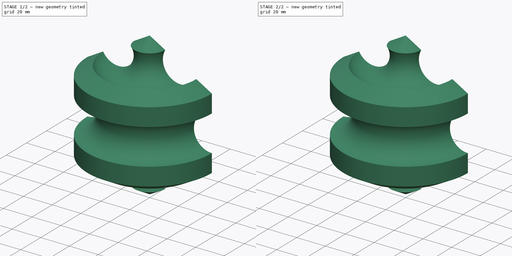
[diagram: build sequence overview — one tinted view per stage of 2, left to right]
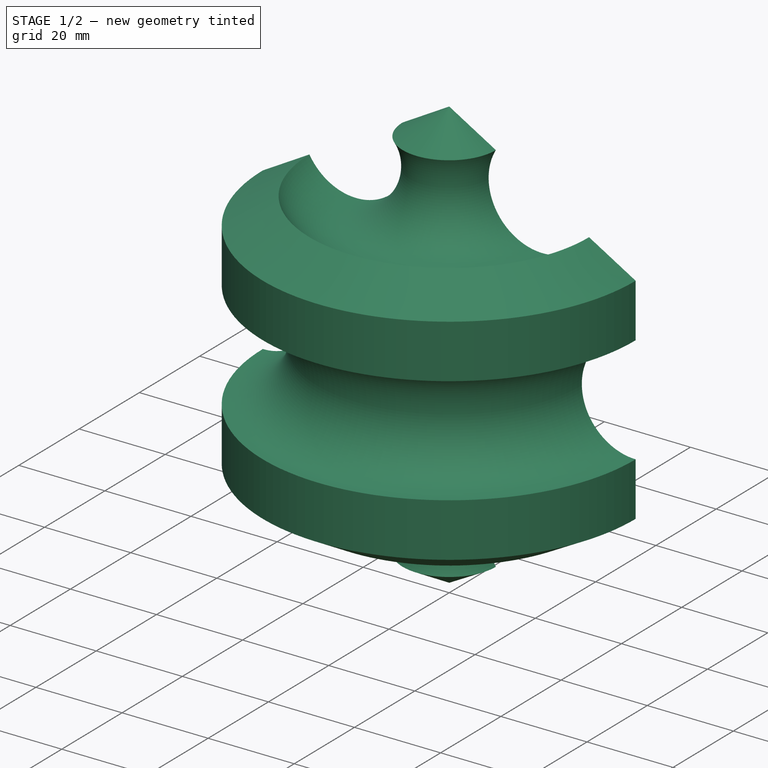
[diagram: stage 1 of 2 — iso view after this stage's code; geometry added in this stage tinted green]
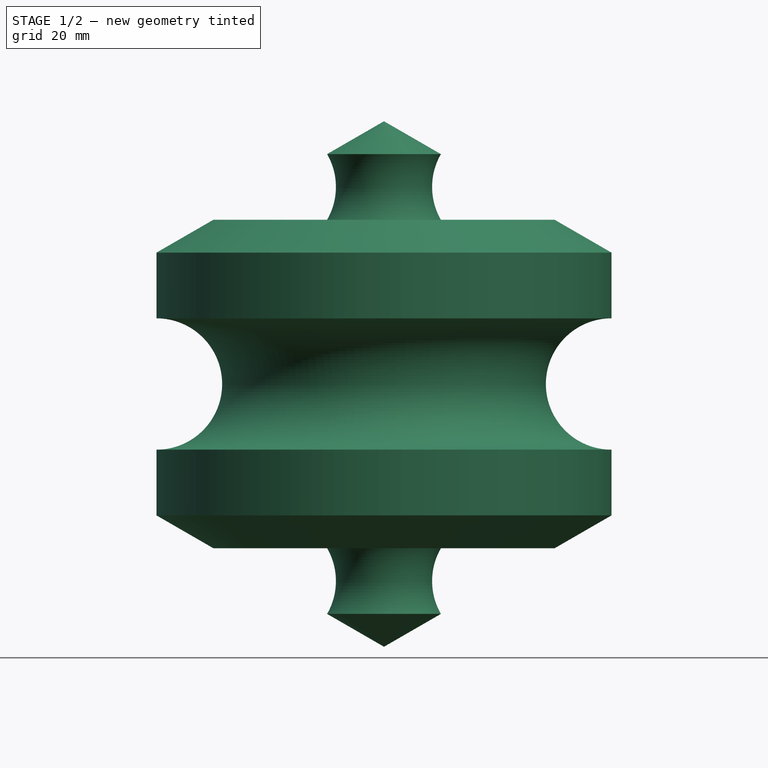
[diagram: stage 1 of 2 — front view after this stage's code; geometry added in this stage tinted green]
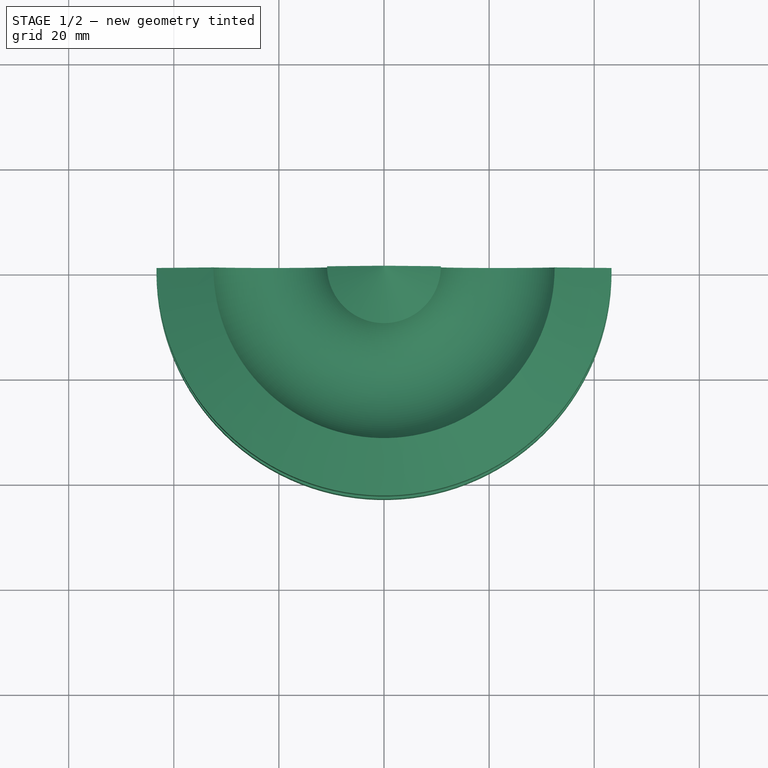
[diagram: stage 1 of 2 — top view after this stage's code; geometry added in this stage tinted green]
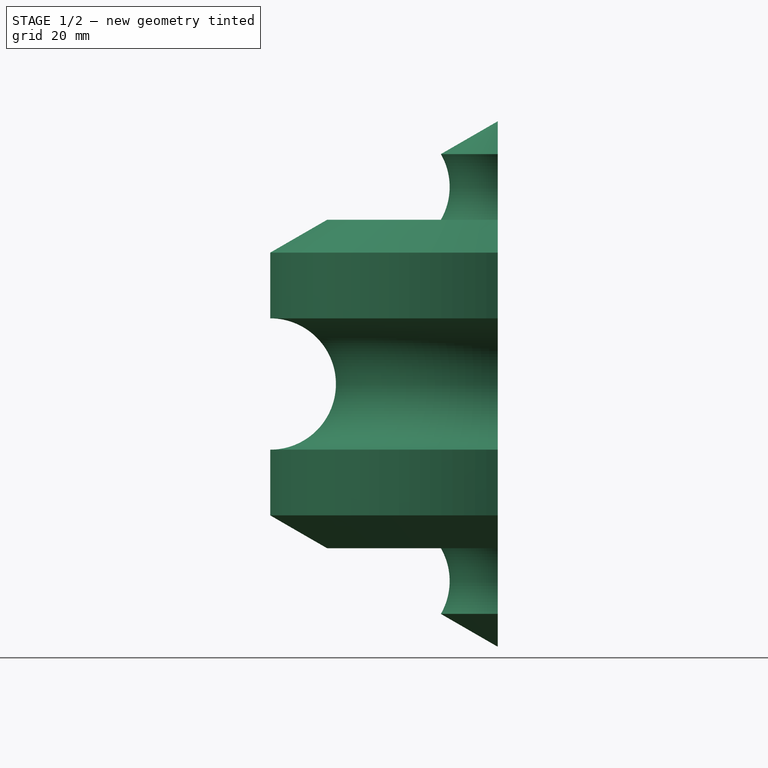
[diagram: stage 1 of 2 — right view after this stage's code; geometry added in this stage tinted green]
FCSTD DOCUMENT  (FreeCAD 0.21R33771 (Git))
Label: ex96
License: All rights reserved
LicenseURL: https://en.wikipedia.org/wiki/All_rights_reserved
objects: PartDesign::Body×2, Sketcher::SketchObject×1, PartDesign::Revolution×1, PartDesign::FeatureBase×1
note: 6 computed .brp shape members not serialized (recipe doc carries the construction recipe); baked Part::Feature solids carry a one-line shape summary decoded from their .brp

FEATURE [Sketcher::SketchObject] Sketch
  FullyConstrained = false
  MapMode = 5
  Placement = pos=(0,0,0) rot=(1,0,0;1.5708rad)
  Support = -> [XZ_Plane]
  sketch-geometry (14):
    g0: LineSegment StartX=43.3013 StartY=-25 StartZ=0 EndX=43.3013 EndY=-12.5 EndZ=0
    g1: LineSegment StartX=43.3013 StartY=25 StartZ=0 EndX=32.476 EndY=31.25 EndZ=0
    g2: LineSegment StartX=0 StartY=50 StartZ=0 EndX=-43.3014 EndY=24.9997 EndZ=0
    g3: LineSegment StartX=-43.3014 StartY=24.9997 StartZ=0 EndX=-43.3013 EndY=-24.9999 EndZ=0
    g4: LineSegment StartX=-43.3013 StartY=-24.9999 StartZ=0 EndX=1.42e-14 EndY=-50 EndZ=0
    g5: LineSegment StartX=1.42e-14 StartY=-50 StartZ=0 EndX=10.8253 EndY=-43.75 EndZ=0
    g6: Circle CenterX=0 CenterY=0 CenterZ=0 NormalX=0 NormalY=0 NormalZ=1 AngleXU=0 Radius=50
    g7: ArcOfCircle CenterX=21.6506 CenterY=37.5 CenterZ=0 NormalX=0 NormalY=0 NormalZ=1 AngleXU=0 Radius=12.5 StartAngle=2.61799 EndAngle=5.75959
    g8: ArcOfCircle CenterX=43.3013 CenterY=6e-15 CenterZ=0 NormalX=0 NormalY=0 NormalZ=1 AngleXU=0 Radius=12.5 StartAngle=1.5708 EndAngle=4.71239
    g9: ArcOfCircle CenterX=21.6506 CenterY=-37.5 CenterZ=0 NormalX=0 NormalY=0 NormalZ=1 AngleXU=0 Radius=12.5 StartAngle=0.523599 EndAngle=3.66519
    g10: LineSegment StartX=10.8253 StartY=43.75 StartZ=0 EndX=0 EndY=50 EndZ=0
    g11: LineSegment StartX=43.3013 StartY=12.5 StartZ=0 EndX=43.3013 EndY=25 EndZ=0
    g12: LineSegment StartX=32.476 StartY=-31.25 StartZ=0 EndX=43.3013 EndY=-25 EndZ=0
    g13: LineSegment StartX=0 StartY=50 StartZ=0 EndX=1.42e-14 EndY=-50 EndZ=0
  constraints (41):
    c: Coincident(g11,g1)
    c: Coincident(g10,g2)
    c: Coincident(g2,g3)
    c: Coincident(g3,g4)
    c: Coincident(g4,g5)
    c: Coincident(g12,g0)
    c: PointOnObject(g11,g6)
    c: PointOnObject(g10,g6)
    c: PointOnObject(g2,g6)
    c: PointOnObject(g3,g6)
    c: PointOnObject(g4,g6)
    c: PointOnObject(g12,g6)
    c: Coincident(g6,g-1)
    c: PointOnObject(g10,g-2)
    c: DistanceY(g4,g10) = 100
    c: PointOnObject(g7,g1)
    c: PointOnObject(g8,g0)
    c: PointOnObject(g9,g5)
    c: Equal(g7,g8)
    c: Equal(g8,g9)
    c: Coincident(g1,g7)
    c: Coincident(g10,g7)
    c: Coincident(g0,g8)
    c: Coincident(g11,g8)
    c: Coincident(g5,g9)
    c: Coincident(g12,g9)
    c: PointOnObject(g9,g5)
    c: PointOnObject(g0,g11)
    c: PointOnObject(g1,g10)
    c: Equal(g10,g1)
    c: Equal(g1,g11)
    c: Equal(g11,g0)
    c: Equal(g0,g12)
    c: Equal(g12,g5)
    c: Vertical(g11)
    c: Vertical(g0)
    c: Parallel(g5,g12)
    c: Parallel(g1,g10)
    c: Diameter(g7) = 25
    c: Coincident(g13,g10)
    c: Coincident(g13,g5)
FEATURE [PartDesign::Revolution] Revolution
  Angle = 180
  Axis = (0,2e-16,1)
  Base = (0,0,0)
  Placement = pos=(0,0,0) rot=(1,0,0;1.5708rad)
  Profile = -> Sketch
  ReferenceAxis = -> Sketch [V_Axis]
  Reversed = true
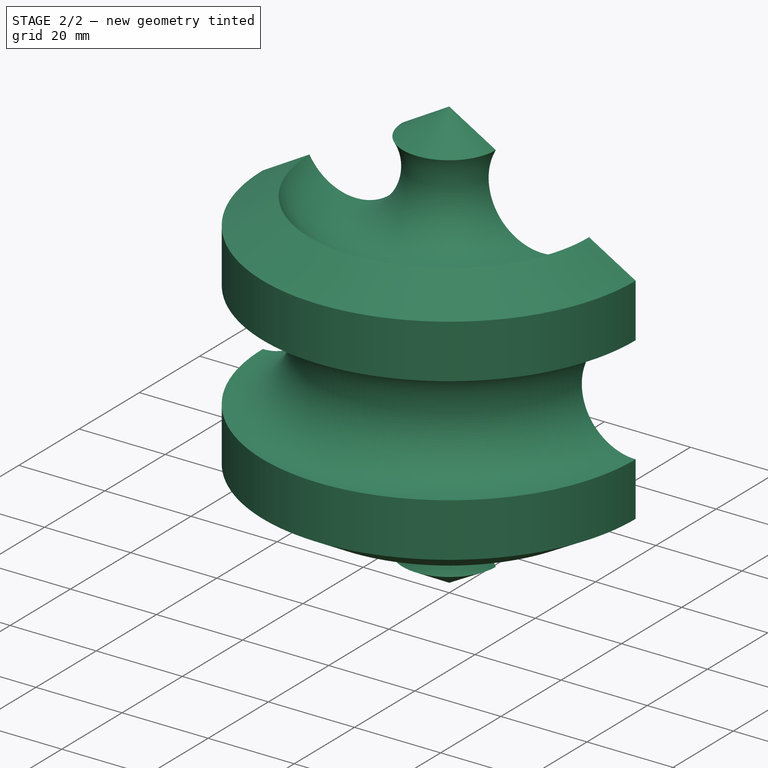
[diagram: stage 2 of 2 — iso view after this stage's code; geometry added in this stage tinted green]
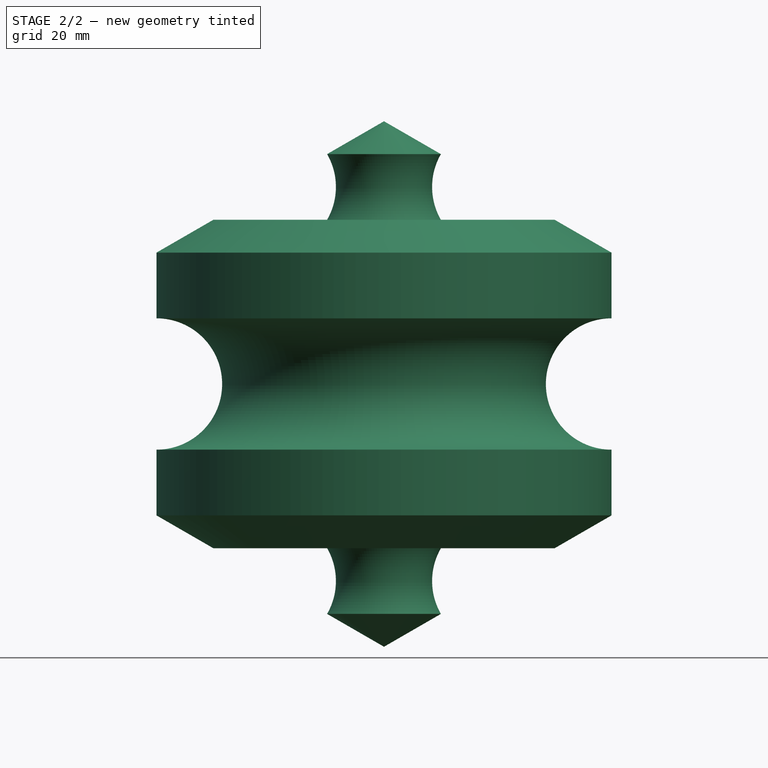
[diagram: stage 2 of 2 — front view after this stage's code; geometry added in this stage tinted green]
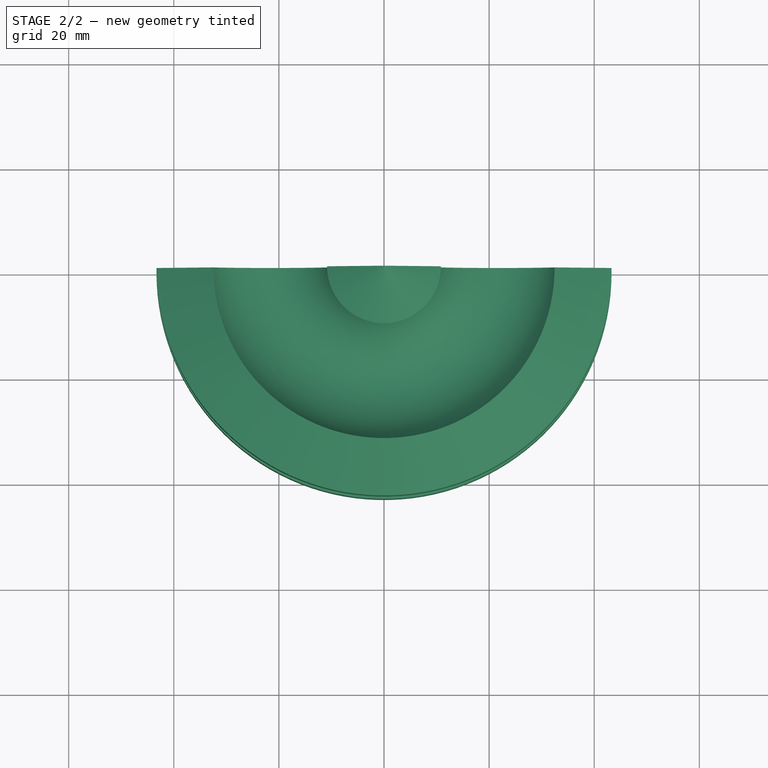
[diagram: stage 2 of 2 — top view after this stage's code; geometry added in this stage tinted green]
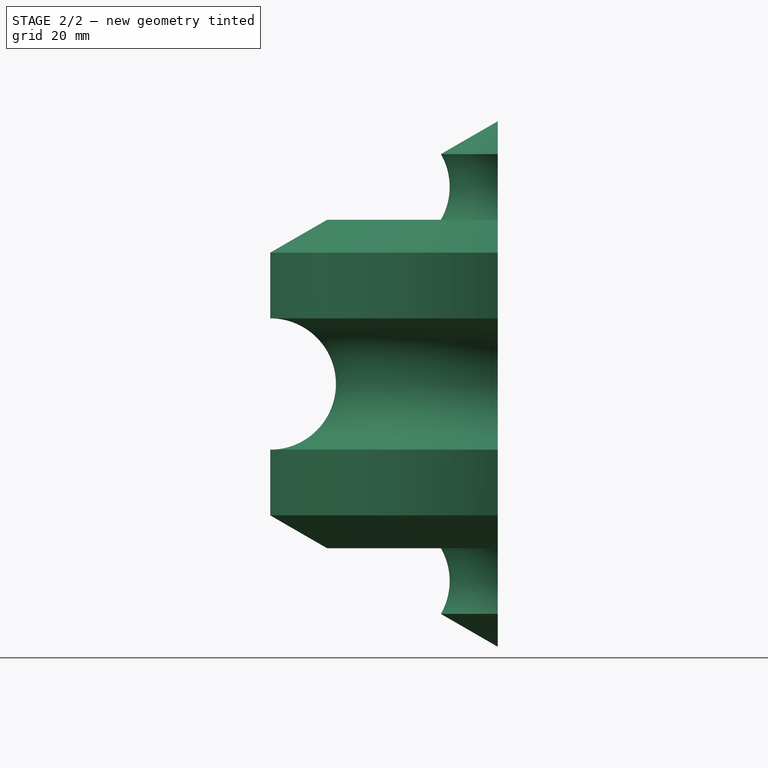
[diagram: stage 2 of 2 — right view after this stage's code; geometry added in this stage tinted green]
FEATURE [PartDesign::Body] Body
  Group = -> [Sketch,Revolution]
  Origin = -> Origin
  Tip = -> Revolution
FEATURE [PartDesign::FeatureBase] Clone
  BaseFeature = -> Body
FEATURE [PartDesign::Body] Body001
  Group = -> [Clone]
  Origin = -> Origin001
  Placement = pos=(0,0,0) rot=(-0.866025,0,-0.5;3.14159rad)
  Tip = -> Clone
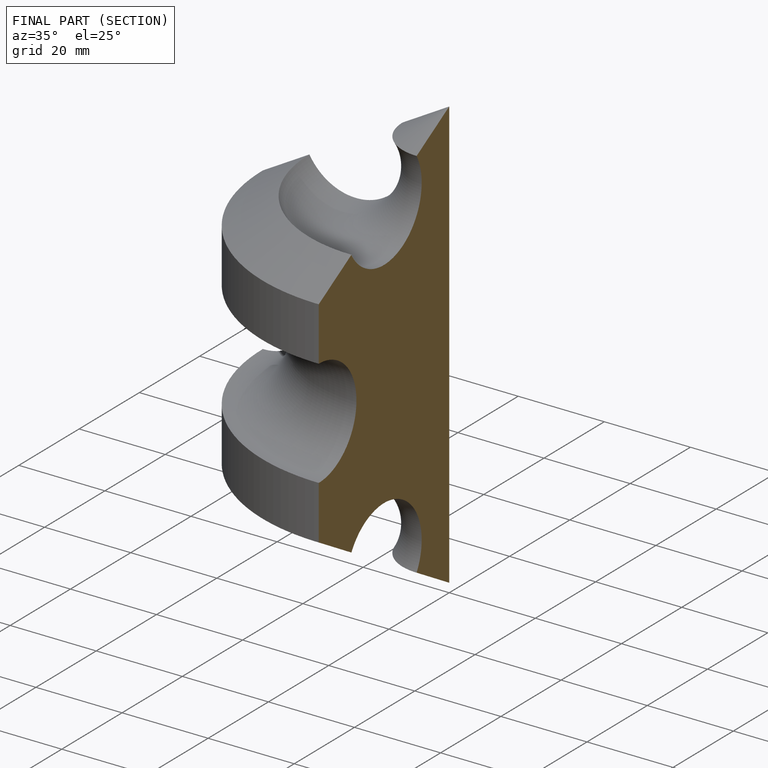
[diagram: finished part — half-section view (interior)]
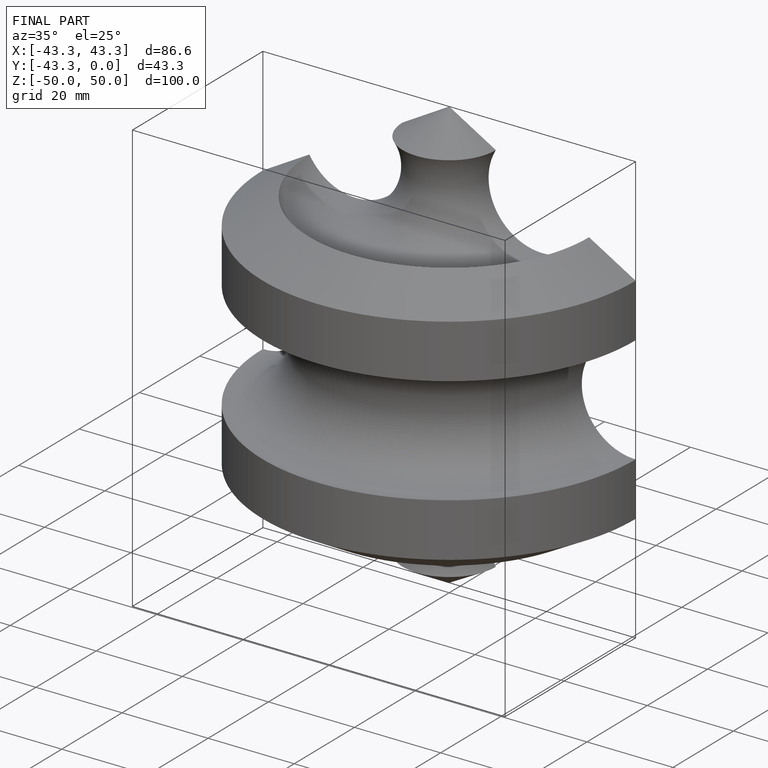
[diagram: finished part — iso view with bounding-box wireframe]
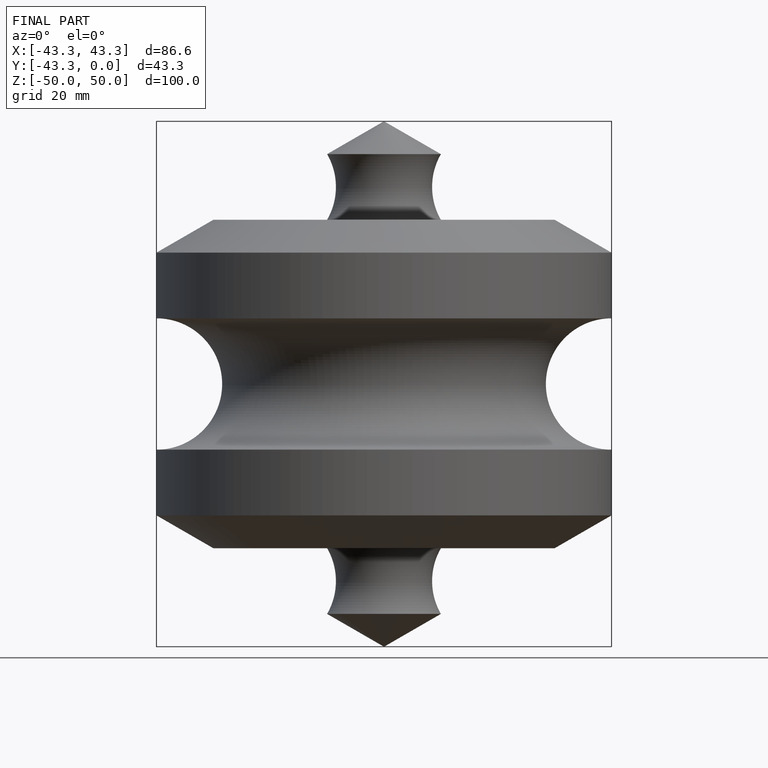
[diagram: finished part — front view with bounding-box wireframe]
